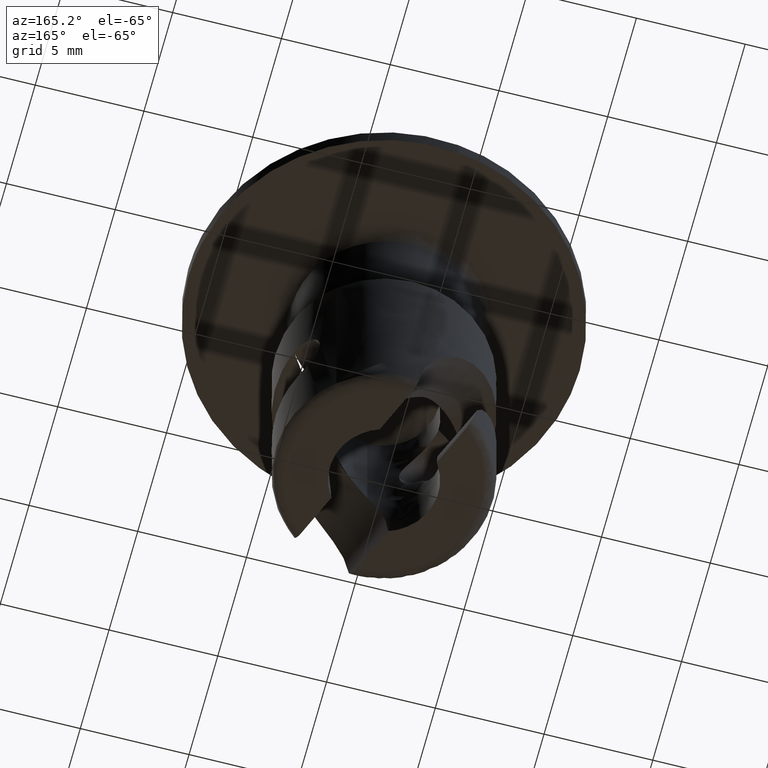
[diagram: clean part render]
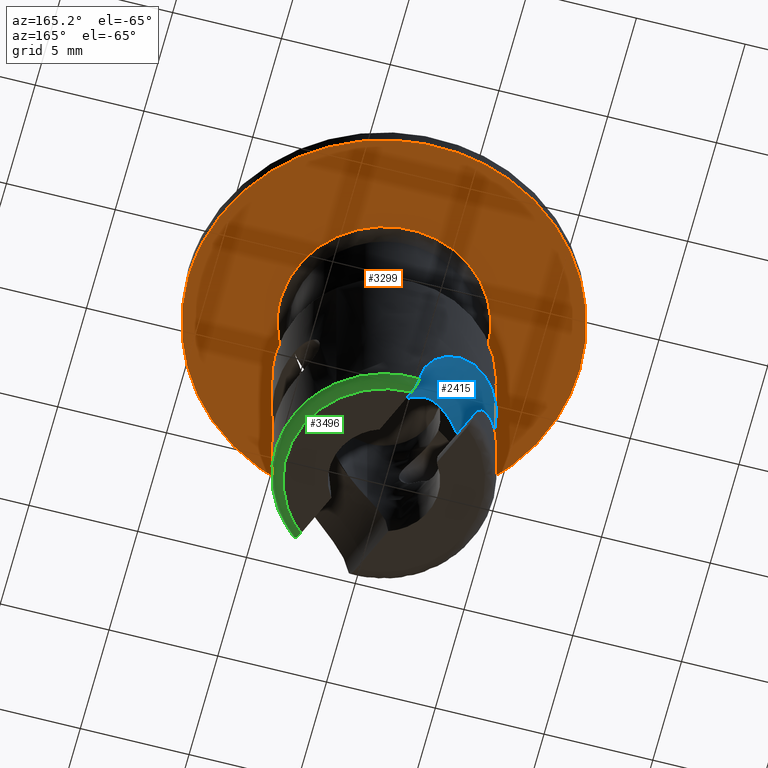
[diagram: same view with three faces highlighted in distinct colors, each labeled with its STEP entity id]
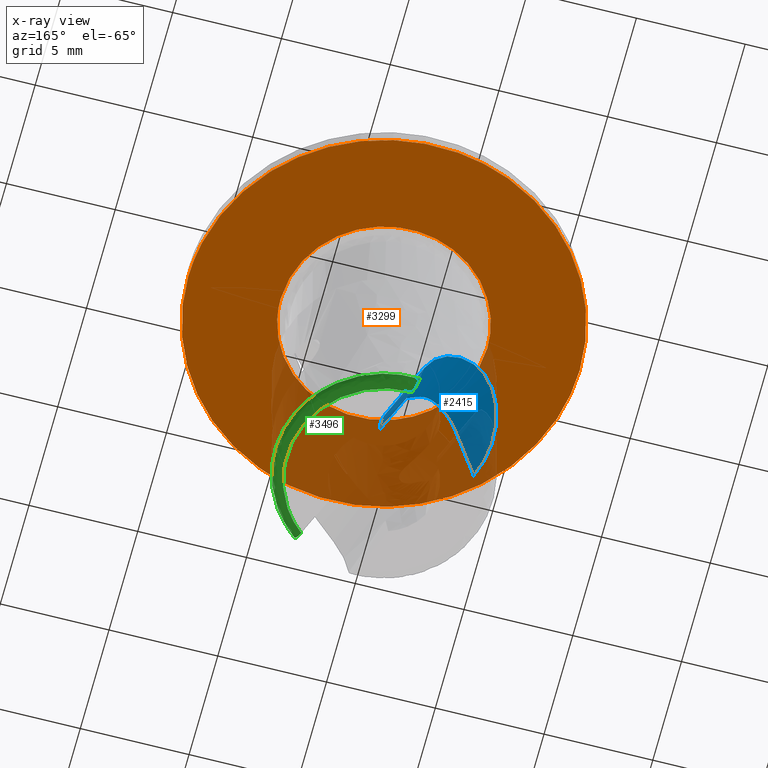
[diagram: x-ray of the same camera — body ghosted, the three highlighted faces saturated]
A machine part, auxiliary view with three faces highlighted in distinct colors.
The next image is the same camera in x-ray (body ghosted, the three faces saturated) — at least one of them is partly hidden behind the body in this view.
Their STEP definitions:

[orange] entity #3299 — the highlighted face is a freeform B-spline surface patch.
#297=CARTESIAN_POINT('',(-1.062301609337486,8.937086510197609,-8.314378E-014));
#298=VERTEX_POINT('',#297);
#299=CARTESIAN_POINT('',(9.0,0.0,0.0));
#300=VERTEX_POINT('',#299);
#301=CARTESIAN_POINT('',(-1.062301609337486,8.937086510197608,-8.314378E-014));
#302=CARTESIAN_POINT('',(-0.533013791208688,9.000000000000002,0.0));
#303=CARTESIAN_POINT('',(0.0,9.0,0.0));
#304=CARTESIAN_POINT('',(9.0,9.0,0.0));
#305=CARTESIAN_POINT('',(9.0,0.0,0.0));
#313=(BOUNDED_CURVE()B_SPLINE_CURVE(2,(#301,#302,#303,#304,#305),.UNSPECIFIED.,.F.,.U.)B_SPLINE_CURVE_WITH_KNOTS((3,2,3),(0.229562596481464,0.250000000000000,0.500000000000000),.UNSPECIFIED.)CURVE()GEOMETRIC_REPRESENTATION_ITEM()RATIONAL_B_SPLINE_CURVE((0.956026995206066,0.976056092397066,1.0,0.707106781186547,1.0))REPRESENTATION_ITEM(''));
#314=EDGE_CURVE('',#298,#300,#313,.T.);
#355=CARTESIAN_POINT('',(0.549431515278102,-8.983213512434766,-1.288674E-013));
#356=VERTEX_POINT('',#355);
#362=CARTESIAN_POINT('',(9.0,0.0,0.0));
#363=CARTESIAN_POINT('',(9.0,-8.466359644820372,0.0));
#364=CARTESIAN_POINT('',(0.549431515278102,-8.983213512434766,-1.288674E-013));
#372=(BOUNDED_CURVE()B_SPLINE_CURVE(2,(#362,#363,#364),.UNSPECIFIED.,.F.,.U.)B_SPLINE_CURVE_WITH_KNOTS((3,3),(0.500000000000000,0.739333064821338),.UNSPECIFIED.)CURVE()GEOMETRIC_REPRESENTATION_ITEM()RATIONAL_B_SPLINE_CURVE((1.0,0.719603873103959,0.976072261520416))REPRESENTATION_ITEM(''));
#373=EDGE_CURVE('',#300,#356,#372,.T.);
#396=CARTESIAN_POINT('',(-9.0,0.0,0.0));
#397=VERTEX_POINT('',#396);
#398=CARTESIAN_POINT('',(-9.0,0.0,0.0));
#399=CARTESIAN_POINT('',(-9.0,7.993576590584168,0.0));
#400=CARTESIAN_POINT('',(-1.062301609337486,8.937086510197608,-8.314378E-014));
#408=(BOUNDED_CURVE()B_SPLINE_CURVE(2,(#398,#399,#400),.UNSPECIFIED.,.F.,.U.)B_SPLINE_CURVE_WITH_KNOTS((3,3),(0.0,0.229562596481464),.UNSPECIFIED.)CURVE()GEOMETRIC_REPRESENTATION_ITEM()RATIONAL_B_SPLINE_CURVE((1.0,0.731050688789481,0.956026995206066))REPRESENTATION_ITEM(''));
#409=EDGE_CURVE('',#397,#298,#408,.T.);
#411=CARTESIAN_POINT('',(0.549431515278102,-8.983213512434766,-1.288674E-013));
#412=CARTESIAN_POINT('',(0.274972191932445,-9.0,0.0));
#413=CARTESIAN_POINT('',(0.0,-9.0,0.0));
#414=CARTESIAN_POINT('',(-9.0,-9.0,0.0));
#415=CARTESIAN_POINT('',(-9.0,0.0,0.0));
#423=(BOUNDED_CURVE()B_SPLINE_CURVE(2,(#411,#412,#413,#414,#415),.UNSPECIFIED.,.F.,.U.)B_SPLINE_CURVE_WITH_KNOTS((3,2,3),(0.739333064821338,0.750000000000000,1.0),.UNSPECIFIED.)CURVE()GEOMETRIC_REPRESENTATION_ITEM()RATIONAL_B_SPLINE_CURVE((0.976072261520416,0.987502908082589,1.0,0.707106781186547,1.0))REPRESENTATION_ITEM(''));
#424=EDGE_CURVE('',#356,#397,#423,.T.);
#1716=CARTESIAN_POINT('',(-4.749999999909127,1.109309E-016,1.369639E-014));
#1717=VERTEX_POINT('',#1716);
#1731=CARTESIAN_POINT('',(4.750000000000000,0.0,0.0));
#1732=VERTEX_POINT('',#1731);
#1733=CARTESIAN_POINT('',(4.750000000000000,0.0,0.0));
#1734=CARTESIAN_POINT('',(4.750000000000000,4.750000000000000,0.0));
#1735=CARTESIAN_POINT('',(0.0,4.750000000000000,0.0));
#1736=CARTESIAN_POINT('',(-4.750000000000000,4.750000000000000,0.0));
#1737=CARTESIAN_POINT('',(-4.749999999909127,1.109309E-016,1.369639E-014));
#1745=(BOUNDED_CURVE()B_SPLINE_CURVE(2,(#1733,#1734,#1735,#1736,#1737),.UNSPECIFIED.,.F.,.U.)B_SPLINE_CURVE_WITH_KNOTS((3,2,3),(0.0,0.250000000000000,0.500000000000000),.UNSPECIFIED.)CURVE()GEOMETRIC_REPRESENTATION_ITEM()RATIONAL_B_SPLINE_CURVE((1.0,0.707106781186548,1.0,0.707106781186548,1.0))REPRESENTATION_ITEM(''));
#1746=EDGE_CURVE('',#1732,#1717,#1745,.T.);
#1748=CARTESIAN_POINT('',(-1.678184341522321,-4.443669352253488,2.737838E-014));
#1749=VERTEX_POINT('',#1748);
#1750=CARTESIAN_POINT('',(-1.678184341522320,-4.443669352253488,2.737838E-014));
#1751=CARTESIAN_POINT('',(-0.867050501521726,-4.749999999999999,0.0));
#1752=CARTESIAN_POINT('',(0.0,-4.750000000000000,0.0));
#1753=CARTESIAN_POINT('',(4.750000000000000,-4.750000000000000,0.0));
#1754=CARTESIAN_POINT('',(4.750000000000000,0.0,0.0));
#1762=(BOUNDED_CURVE()B_SPLINE_CURVE(2,(#1750,#1751,#1752,#1753,#1754),.UNSPECIFIED.,.F.,.U.)B_SPLINE_CURVE_WITH_KNOTS((3,2,3),(0.689999999998230,0.750000000000000,1.0),.UNSPECIFIED.)CURVE()GEOMETRIC_REPRESENTATION_ITEM()RATIONAL_B_SPLINE_CURVE((0.893152553774696,0.929705627482698,1.0,0.707106781186548,1.0))REPRESENTATION_ITEM(''));
#1763=EDGE_CURVE('',#1749,#1732,#1762,.T.);
#1801=CARTESIAN_POINT('',(-4.749999999909127,1.109309E-016,1.369639E-014));
#1802=CARTESIAN_POINT('',(-4.750000000000000,-3.283575626171604,0.0));
#1803=CARTESIAN_POINT('',(-1.678184341522321,-4.443669352253488,2.737838E-014));
#1811=(BOUNDED_CURVE()B_SPLINE_CURVE(2,(#1801,#1802,#1803),.UNSPECIFIED.,.F.,.U.)B_SPLINE_CURVE_WITH_KNOTS((3,3),(0.500000000000000,0.689999999998229),.UNSPECIFIED.)CURVE()GEOMETRIC_REPRESENTATION_ITEM()RATIONAL_B_SPLINE_CURVE((1.0,0.777401153703851,0.893152553774695))REPRESENTATION_ITEM(''));
#1812=EDGE_CURVE('',#1717,#1749,#1811,.T.);
#3283=CARTESIAN_POINT('',(-9.899099965112507,-9.898881420025527,0.0));
#3284=CARTESIAN_POINT('',(9.899100447910129,-9.898881420025527,0.0));
#3285=CARTESIAN_POINT('',(-9.899099965112507,9.898936298021974,0.0));
#3286=CARTESIAN_POINT('',(9.899100447910129,9.898936298021974,0.0));
#3287=B_SPLINE_SURFACE_WITH_KNOTS('',1,1,((#3283,#3285),(#3284,#3286)),.UNSPECIFIED.,.F.,.F.,.U.,(2,2),(2,2),(0.0,19.798200413022631),(0.0,19.797817718047501),.UNSPECIFIED.);
#3288=ORIENTED_EDGE('',*,*,#409,.T.);
#3289=ORIENTED_EDGE('',*,*,#314,.T.);
#3290=ORIENTED_EDGE('',*,*,#373,.T.);
#3291=ORIENTED_EDGE('',*,*,#424,.T.);
#3292=EDGE_LOOP('',(#3288,#3289,#3290,#3291));
#3293=FACE_OUTER_BOUND('',#3292,.T.);
#3294=ORIENTED_EDGE('',*,*,#1746,.T.);
#3295=ORIENTED_EDGE('',*,*,#1812,.T.);
#3296=ORIENTED_EDGE('',*,*,#1763,.T.);
#3297=EDGE_LOOP('',(#3294,#3295,#3296));
#3298=FACE_BOUND('',#3297,.T.);
#3299=ADVANCED_FACE('',(#3293,#3298),#3287,.F.);

[blue] entity #2415 — the highlighted face is a freeform B-spline surface patch.
#483=CARTESIAN_POINT('',(-0.396705262394776,2.468326342399136,-12.757818604130780));
#484=VERTEX_POINT('',#483);
#485=CARTESIAN_POINT('',(0.821620629966657,2.361130987559410,-16.499991999999999));
#486=VERTEX_POINT('',#485);
#487=CARTESIAN_POINT('',(-0.396705262394776,2.468326342399136,-12.757818604130780));
#488=CARTESIAN_POINT('',(-0.374689728730974,2.471862556015252,-12.792135446358330));
#489=CARTESIAN_POINT('',(-0.352860775296325,2.475066859503198,-12.826635483326990));
#490=CARTESIAN_POINT('',(-0.274510751990244,2.485539854627109,-12.952236586625000));
#491=CARTESIAN_POINT('',(-0.219122534949363,2.490963330062478,-13.044421271482831));
#492=CARTESIAN_POINT('',(-0.111245094675823,2.498106902240503,-13.231391844104509));
#493=CARTESIAN_POINT('',(-0.058756051457369,2.499816637977361,-13.326203044072869));
#494=CARTESIAN_POINT('',(0.092550910448116,2.500320389651988,-13.611869867123040));
#495=CARTESIAN_POINT('',(0.185777978703736,2.494552241246191,-13.804874506509320));
#496=CARTESIAN_POINT('',(0.355782634026911,2.476029930817845,-14.196684103217329));
#497=CARTESIAN_POINT('',(0.432564614343583,2.463259284223879,-14.395486642063640));
#498=CARTESIAN_POINT('',(0.567810437403353,2.435641776414343,-14.799821152887610));
#499=CARTESIAN_POINT('',(0.626276591543895,2.420796277435143,-15.005352327865010));
#500=CARTESIAN_POINT('',(0.698214385251623,2.400648686511466,-15.319624382292600));
#501=CARTESIAN_POINT('',(0.719589156788436,2.394277061143072,-15.425553476065719));
#502=CARTESIAN_POINT('',(0.756523998607447,2.382864482991020,-15.638808192220370));
#503=CARTESIAN_POINT('',(0.772021192912378,2.377846312257434,-15.745723948289189));
#504=CARTESIAN_POINT('',(0.809320382263347,2.365520120731845,-16.067381413073541));
#505=CARTESIAN_POINT('',(0.821911469345406,2.361029684390005,-16.283037621032069));
#506=CARTESIAN_POINT('',(0.821620629966657,2.361130987559410,-16.499991999999999));
#507=B_SPLINE_CURVE_WITH_KNOTS('',3,(#487,#488,#489,#490,#491,#492,#493,#494,#495,#496,#497,#498,#499,#500,#501,#502,#503,#504,#505,#506),.UNSPECIFIED.,.F.,.U.,(4,2,2,2,2,2,2,2,2,4),(0.226156631963518,0.249999999999999,0.312499999999999,0.374999999999998,0.499999999999998,0.624999999999998,0.749999999999998,0.812499999999997,0.874999999999998,1.0),.UNSPECIFIED.);
#508=EDGE_CURVE('',#484,#486,#507,.T.);
#745=CARTESIAN_POINT('',(-1.068076637585400,2.260356674563610,-11.830051027094740));
#746=VERTEX_POINT('',#745);
#747=CARTESIAN_POINT('',(-1.068076637585400,2.260356674563610,-11.830051027094740));
#748=CARTESIAN_POINT('',(-0.937149889792955,2.322222535056724,-11.992076449015840));
#749=CARTESIAN_POINT('',(-0.809622041924993,2.368734506686296,-12.159008977675610));
#750=CARTESIAN_POINT('',(-0.586867594563241,2.432347862127605,-12.469934268652260));
#751=CARTESIAN_POINT('',(-0.490107279872867,2.453324163062127,-12.612227755805980));
#752=CARTESIAN_POINT('',(-0.396705262394776,2.468326342399136,-12.757818604130780));
#753=B_SPLINE_CURVE_WITH_KNOTS('',3,(#747,#748,#749,#750,#751,#752),.UNSPECIFIED.,.F.,.U.,(4,2,4),(0.0,0.125000000000000,0.226156631963518),.UNSPECIFIED.);
#754=EDGE_CURVE('',#746,#484,#753,.T.);
#1047=CARTESIAN_POINT('',(-0.313195905412202,4.990181191583430,-15.999992000000001));
#1048=VERTEX_POINT('',#1047);
#1062=CARTESIAN_POINT('',(-4.602524578819660,-1.953654908462775,-9.500000000000000));
#1063=VERTEX_POINT('',#1062);
#1064=CARTESIAN_POINT('',(-0.313195905412202,4.990181191583430,-15.999992000000001));
#1065=CARTESIAN_POINT('',(-0.333546765425535,4.988903922125051,-15.727396232284431));
#1066=CARTESIAN_POINT('',(-0.370452584818856,4.986532960222630,-15.459241468027781));
#1067=CARTESIAN_POINT('',(-0.474883570205751,4.977673319507243,-14.931217910276290));
#1068=CARTESIAN_POINT('',(-0.542411066037259,4.971178988433310,-14.671349930966340));
#1069=CARTESIAN_POINT('',(-0.706408354634536,4.950537095720326,-14.159575522817160));
#1070=CARTESIAN_POINT('',(-0.802876324190982,4.936397573944337,-13.907668332396129));
#1071=CARTESIAN_POINT('',(-0.940999279459356,4.910734142524551,-13.597724074708120));
#1072=CARTESIAN_POINT('',(-0.969553742324187,4.905186823861801,-13.535879231302539));
#1073=CARTESIAN_POINT('',(-1.028090254946042,4.893252769265782,-13.413356119784391));
#1074=CARTESIAN_POINT('',(-1.118053938493007,4.874091495996610,-13.231257073642141));
#1075=CARTESIAN_POINT('',(-1.214254316441925,4.850809270207141,-13.054133564454609));
#1076=CARTESIAN_POINT('',(-1.414411305832226,4.797759596065175,-12.706374693822969));
#1077=CARTESIAN_POINT('',(-1.558172904669955,4.753794878156501,-12.483163799037110));
#1078=CARTESIAN_POINT('',(-1.863910727941976,4.642446051673341,-12.053786999905910));
#1079=CARTESIAN_POINT('',(-2.025898679385793,4.575105322148563,-11.847619161810870));
#1080=CARTESIAN_POINT('',(-2.281066071465191,4.450359661823153,-11.551551674399359));
#1081=CARTESIAN_POINT('',(-2.367379583129335,4.405162778008863,-11.455979557419241));
#1082=CARTESIAN_POINT('',(-2.541149898323535,4.307261587786686,-11.271862428583290));
#1083=CARTESIAN_POINT('',(-2.628735599058786,4.254496003795603,-11.183168502018880));
#1084=CARTESIAN_POINT('',(-2.892725821805875,4.083636333483227,-10.927054117878800));
#1085=CARTESIAN_POINT('',(-3.070398690331163,3.953062455629196,-10.769580052182951));
#1086=CARTESIAN_POINT('',(-3.291383398934526,3.764329090581676,-10.589240772930030));
#1087=CARTESIAN_POINT('',(-3.335526468967402,3.725286228791988,-10.554001642793491));
#1088=CARTESIAN_POINT('',(-3.422666554459483,3.645387217922649,-10.485892239748219));
#1089=CARTESIAN_POINT('',(-3.552011977668127,3.522522078198718,-10.386988242181349));
#1090=CARTESIAN_POINT('',(-3.676899926640314,3.390495834068192,-10.297526967280669));
#1091=CARTESIAN_POINT('',(-3.919717473170421,3.113845727708381,-10.130377207413609));
#1092=CARTESIAN_POINT('',(-4.072371127740670,2.912667398485371,-10.034628307955879));
#1093=CARTESIAN_POINT('',(-4.247738525421426,2.638362615935605,-9.932128063504123));
#1094=CARTESIAN_POINT('',(-4.282126033587898,2.582194651128494,-9.912438321733704));
#1095=CARTESIAN_POINT('',(-4.348616761330273,2.468575469157305,-9.875063344855962));
#1096=CARTESIAN_POINT('',(-4.380753847554343,2.411086895704135,-9.857355702648940));
#1097=CARTESIAN_POINT('',(-4.473804560942052,2.236615728391362,-9.806957805303112));
#1098=CARTESIAN_POINT('',(-4.531361084768399,2.117630048049669,-9.776988375661446));
#1099=CARTESIAN_POINT('',(-4.637253118513405,1.874426263098655,-9.723280495578823));
#1100=CARTESIAN_POINT('',(-4.685589482853716,1.750208259561912,-9.699543236958979));
#1101=CARTESIAN_POINT('',(-4.772655934160066,1.496573782943829,-9.657395666182408));
#1102=CARTESIAN_POINT('',(-4.811415673390117,1.367045619879309,-9.638972576584321));
#1103=CARTESIAN_POINT('',(-4.912306595230540,0.971278513278041,-9.590556081878109));
#1104=CARTESIAN_POINT('',(-4.957498069659618,0.704509144948995,-9.568086883068808));
#1105=CARTESIAN_POINT('',(-4.992796598157821,0.300436667074131,-9.543235585684673));
#1106=CARTESIAN_POINT('',(-4.999123886082068,0.165088601563694,-9.536452009681046));
#1107=CARTESIAN_POINT('',(-5.000311045573650,-0.038896223528829,-9.527979404065173));
#1108=CARTESIAN_POINT('',(-4.999321224268683,-0.107051855906737,-9.525440086090436));
#1109=CARTESIAN_POINT('',(-4.994526116694834,-0.243683550798210,-9.520852306145960));
#1110=CARTESIAN_POINT('',(-4.990711513832196,-0.312172775928860,-9.518804757432035));
#1111=CARTESIAN_POINT('',(-4.964776931553784,-0.652259243832833,-9.509688334725635));
#1112=CARTESIAN_POINT('',(-4.922157670676698,-0.919354550364728,-9.505776196690922));
#1113=CARTESIAN_POINT('',(-4.794587989318406,-1.443874972759587,-9.500926860059549));
#1114=CARTESIAN_POINT('',(-4.709642284534187,-1.701301296142523,-9.499999999999982));
#1115=CARTESIAN_POINT('',(-4.602524578819680,-1.953654908462780,-9.500000000000000));
#1116=B_SPLINE_CURVE_WITH_KNOTS('',3,(#1064,#1065,#1066,#1067,#1068,#1069,#1070,#1071,#1072,#1073,#1074,#1075,#1076,#1077,#1078,#1079,#1080,#1081,#1082,#1083,#1084,#1085,#1086,#1087,#1088,#1089,#1090,#1091,#1092,#1093,#1094,#1095,#1096,#1097,#1098,#1099,#1100,#1101,#1102,#1103,#1104,#1105,#1106,#1107,#1108,#1109,#1110,#1111,#1112,#1113,#1114,#1115),.UNSPECIFIED.,.F.,.U.,(4,2,2,2,2,1,2,2,2,2,2,2,2,1,2,2,2,2,2,2,2,2,2,2,2,2,4),(0.0,0.062500000000000,0.125000000000000,0.187499999999999,0.203124999999999,0.218749999999999,0.249999999999999,0.312499999999999,0.374999999999999,0.406249999999999,0.437499999999999,0.499999999999999,0.515624999999999,0.531249999999999,0.562499999999998,0.624999999999998,0.640624999999998,0.656249999999998,0.687499999999998,0.718749999999998,0.749999999999998,0.812499999999999,0.843749999999999,0.859374999999999,0.874999999999999,0.937500000000000,1.0),.UNSPECIFIED.);
#1117=EDGE_CURVE('',#1048,#1063,#1116,.T.);
#1995=CARTESIAN_POINT('',(-1.068076637585400,2.260356674563610,-11.830051027094740));
#1996=CARTESIAN_POINT('',(-1.115196898123030,2.243959020799069,-11.775354650815141));
#1997=CARTESIAN_POINT('',(-1.211607937571305,2.210408381946171,-11.663442398399670));
#1998=CARTESIAN_POINT('',(-1.358044262630284,2.136874158805101,-11.497915340138841));
#1999=CARTESIAN_POINT('',(-1.510223223717602,2.045196417221640,-11.330777932128539));
#2000=CARTESIAN_POINT('',(-1.668513222311159,1.933383166725397,-11.163367103534560));
#2001=CARTESIAN_POINT('',(-1.833388564019825,1.801766182632153,-10.996605001827920));
#2002=CARTESIAN_POINT('',(-2.005294546602790,1.650066696230525,-10.831615007748960));
#2003=CARTESIAN_POINT('',(-2.280103868866821,1.386131698470109,-10.583115061358050));
#2004=CARTESIAN_POINT('',(-2.648559343769375,0.990191801033740,-10.290238160197550));
#2005=CARTESIAN_POINT('',(-3.046132583966342,0.488190559634916,-10.030102903001280));
#2006=CARTESIAN_POINT('',(-3.431541625116947,-0.106862995292912,-9.812288419038961));
#2007=CARTESIAN_POINT('',(-3.756832317011396,-0.609583753181215,-9.676222751544589));
#2008=CARTESIAN_POINT('',(-4.056671894118712,-1.064740366865341,-9.589291363422561));
#2009=CARTESIAN_POINT('',(-4.216908536215279,-1.297732362889791,-9.554100119924556));
#2010=CARTESIAN_POINT('',(-4.335363766573912,-1.466941027549956,-9.533473465121672));
#2011=CARTESIAN_POINT('',(-4.415481485342678,-1.580117718018017,-9.521640466615461));
#2012=CARTESIAN_POINT('',(-4.487639912387965,-1.685338930415181,-9.512666428997489));
#2013=CARTESIAN_POINT('',(-4.545029055053859,-1.777706913664721,-9.506554950711630));
#2014=CARTESIAN_POINT('',(-4.582017502343803,-1.851747667278659,-9.502888301022550));
#2015=CARTESIAN_POINT('',(-4.606164697329787,-1.908464191864825,-9.500664087911277));
#2016=CARTESIAN_POINT('',(-4.603546974480717,-1.940962246825166,-9.500186521564382));
#2017=CARTESIAN_POINT('',(-4.602524578819660,-1.953654908462775,-9.500000000000000));
#2018=B_SPLINE_CURVE_WITH_KNOTS('',3,(#1995,#1996,#1997,#1998,#1999,#2000,#2001,#2002,#2003,#2004,#2005,#2006,#2007,#2008,#2009,#2010,#2011,#2012,#2013,#2014,#2015,#2016,#2017),.UNSPECIFIED.,.F.,.U.,(4,1,1,1,1,1,1,1,1,1,1,1,1,1,1,1,1,1,1,1,4),(0.0,0.035661690032899,0.072966077974213,0.112076344922829,0.153134142441811,0.196261933425678,0.241565394112429,0.289135700252919,0.415323915226517,0.536920191129094,0.620898977058480,0.772239528690764,0.832208927584857,0.886700270743866,0.909457090794413,0.932201028318931,0.953717471453569,0.971115563559161,0.984466466096118,0.993933117224434,1.0),.UNSPECIFIED.);
#2019=EDGE_CURVE('',#746,#1063,#2018,.T.);
#2365=CARTESIAN_POINT('',(-6.848274135887317,2.660344091129034,-9.492860294288445));
#2366=CARTESIAN_POINT('',(-4.795838525301175,-2.174893341668361,-9.492860294288445));
#2367=CARTESIAN_POINT('',(-0.058428642025677,5.542461231324364,-9.552643478378027));
#2368=CARTESIAN_POINT('',(1.994006968560463,0.707223798526976,-9.552643478378029));
#2369=CARTESIAN_POINT('',(-0.468736995841141,5.368295745472592,-16.915624430937129));
#2370=CARTESIAN_POINT('',(1.583698614744997,0.533058312675202,-16.915624430937129));
#2378=(BOUNDED_SURFACE()B_SPLINE_SURFACE(1,2,((#2365,#2367,#2369),(#2366,#2368,#2370)),.UNSPECIFIED.,.F.,.F.,.U.)B_SPLINE_SURFACE_WITH_KNOTS((2,2),(3,3),(0.0,5.252810006760881),(0.0,12.029749367071400),.UNSPECIFIED.)GEOMETRIC_REPRESENTATION_ITEM()RATIONAL_B_SPLINE_SURFACE(((1.0,0.688354575693754,1.0),(1.0,0.688354575693754,1.0)))REPRESENTATION_ITEM('')SURFACE());
#2379=ORIENTED_EDGE('',*,*,#508,.F.);
#2380=ORIENTED_EDGE('',*,*,#754,.F.);
#2381=ORIENTED_EDGE('',*,*,#2019,.T.);
#2382=ORIENTED_EDGE('',*,*,#1117,.F.);
#2383=CARTESIAN_POINT('',(-0.085926736938831,4.499179546970655,-16.499991999999999));
#2384=VERTEX_POINT('',#2383);
#2385=CARTESIAN_POINT('',(-0.085926736938831,4.499179546970655,-16.499991999999999));
#2386=CARTESIAN_POINT('',(-0.099323386829684,4.530740090304483,-16.499992000014480));
#2387=CARTESIAN_POINT('',(-0.112514948671491,4.561830365591241,-16.496982507674950));
#2388=CARTESIAN_POINT('',(-0.138512566770733,4.623070058957914,-16.485107271363908));
#2389=CARTESIAN_POINT('',(-0.151372913173369,4.653347832798069,-16.476191638592368));
#2390=CARTESIAN_POINT('',(-0.176517242522216,4.712335603826618,-16.452256780752041));
#2391=CARTESIAN_POINT('',(-0.188511817925164,4.740365641031774,-16.437540437744271));
#2392=CARTESIAN_POINT('',(-0.205717921178867,4.780207127594323,-16.411385875600750));
#2393=CARTESIAN_POINT('',(-0.211321637625097,4.793117980129815,-16.401983380206762));
#2394=CARTESIAN_POINT('',(-0.222271157668031,4.818168450778479,-16.381762240879539));
#2395=CARTESIAN_POINT('',(-0.227646493351381,4.830374038537219,-16.370873922467311));
#2396=CARTESIAN_POINT('',(-0.243104211517101,4.865120905863292,-16.336599099187762));
#2397=CARTESIAN_POINT('',(-0.252551265329906,4.885876374978811,-16.311622758348481));
#2398=CARTESIAN_POINT('',(-0.269855555540411,4.922516928318113,-16.257422027989101));
#2399=CARTESIAN_POINT('',(-0.277788428082754,4.938535296295917,-16.227807117909720));
#2400=CARTESIAN_POINT('',(-0.291479740881818,4.964145045134797,-16.166365880077009));
#2401=CARTESIAN_POINT('',(-0.297290747804780,4.973871177412902,-16.134504893100029));
#2402=CARTESIAN_POINT('',(-0.306881423756245,4.987005521835656,-16.068459685655530));
#2403=CARTESIAN_POINT('',(-0.310638657178369,4.990341690701624,-16.034245837189271));
#2404=CARTESIAN_POINT('',(-0.313195905412202,4.990181191583430,-15.999992000000001));
#2405=B_SPLINE_CURVE_WITH_KNOTS('',3,(#2385,#2386,#2387,#2388,#2389,#2390,#2391,#2392,#2393,#2394,#2395,#2396,#2397,#2398,#2399,#2400,#2401,#2402,#2403,#2404),.UNSPECIFIED.,.F.,.U.,(4,2,2,2,2,2,2,2,2,4),(0.0,0.124999999999999,0.249999999999998,0.374999999999997,0.437499999999996,0.499999999999996,0.624999999999997,0.749999999999998,0.874999999999999,1.0),.UNSPECIFIED.);
#2406=EDGE_CURVE('',#2384,#1048,#2405,.T.);
#2407=ORIENTED_EDGE('',*,*,#2406,.F.);
#2408=CARTESIAN_POINT('',(-0.085926736938831,4.499179546970655,-16.499991999999999));
#2409=CARTESIAN_POINT('',(0.821620629966657,2.361130987559410,-16.499991999999999));
#2410=QUASI_UNIFORM_CURVE('',1,(#2408,#2409),.UNSPECIFIED.,.F.,.U.);
#2411=EDGE_CURVE('',#2384,#486,#2410,.T.);
#2412=ORIENTED_EDGE('',*,*,#2411,.T.);
#2413=EDGE_LOOP('',(#2379,#2380,#2381,#2382,#2407,#2412));
#2414=FACE_OUTER_BOUND('',#2413,.T.);
#2415=ADVANCED_FACE('',(#2414),#2378,.F.);

[green] entity #3496 — the highlighted face is a freeform B-spline surface patch.
#983=CARTESIAN_POINT('',(3.124495312218480,-3.903527769073095,-15.999992000000001));
#984=VERTEX_POINT('',#983);
#1000=CARTESIAN_POINT('',(3.441769540624432,-3.626875022551604,-15.999992000000001));
#1001=VERTEX_POINT('',#1000);
#1002=CARTESIAN_POINT('',(3.124495312218476,-3.903527769073094,-15.999992000000001));
#1003=CARTESIAN_POINT('',(3.288960453761339,-3.771885164184941,-15.999991999999999));
#1004=CARTESIAN_POINT('',(3.441769540624432,-3.626875022551605,-15.999992000000001));
#1012=(BOUNDED_CURVE()B_SPLINE_CURVE(2,(#1002,#1003,#1004),.UNSPECIFIED.,.F.,.U.)B_SPLINE_CURVE_WITH_KNOTS((3,3),(0.0,0.035159483034312),.UNSPECIFIED.)CURVE()GEOMETRIC_REPRESENTATION_ITEM()RATIONAL_B_SPLINE_CURVE((1.0,0.986404524283290,0.974721088157800))REPRESENTATION_ITEM(''));
#1013=EDGE_CURVE('',#984,#1001,#1012,.T.);
#1045=CARTESIAN_POINT('',(3.205212513216011,3.837526904807765,-15.999992000000001));
#1046=VERTEX_POINT('',#1045);
#1047=CARTESIAN_POINT('',(-0.313195905412202,4.990181191583430,-15.999992000000001));
#1048=VERTEX_POINT('',#1047);
#1049=CARTESIAN_POINT('',(3.205212513216011,3.837526904807766,-15.999992000000002));
#1050=CARTESIAN_POINT('',(1.675711776548833,5.115009873813185,-15.999992000000001));
#1051=CARTESIAN_POINT('',(-0.313195905412200,4.990181191583432,-15.999992000000001));
#1059=(BOUNDED_CURVE()B_SPLINE_CURVE(2,(#1049,#1050,#1051),.UNSPECIFIED.,.F.,.U.)B_SPLINE_CURVE_WITH_KNOTS((3,3),(0.701706688052133,1.0),.UNSPECIFIED.)CURVE()GEOMETRIC_REPRESENTATION_ITEM()RATIONAL_B_SPLINE_CURVE((0.906937281743806,0.884655884300499,1.0))REPRESENTATION_ITEM(''));
#1060=EDGE_CURVE('',#1046,#1048,#1059,.T.);
#1350=CARTESIAN_POINT('',(3.441769540624433,-3.626875022551604,-15.999992000000002));
#1351=CARTESIAN_POINT('',(5.871268088622720,-1.321371234996644,-15.999991999999999));
#1352=CARTESIAN_POINT('',(4.663728750462753,1.802674164153669,-15.999992000000001));
#1353=CARTESIAN_POINT('',(4.197569954227769,3.008681452388637,-15.999991999999999));
#1354=CARTESIAN_POINT('',(3.205212513216011,3.837526904807766,-15.999992000000002));
#1362=(BOUNDED_CURVE()B_SPLINE_CURVE(2,(#1350,#1351,#1352,#1353,#1354),.UNSPECIFIED.,.F.,.U.)B_SPLINE_CURVE_WITH_KNOTS((3,2,3),(0.035159483034312,0.500000000000000,0.701706688052133),.UNSPECIFIED.)CURVE()GEOMETRIC_REPRESENTATION_ITEM()RATIONAL_B_SPLINE_CURVE((0.974721088157800,0.820255378772700,1.0,0.922004018755491,0.906937281743806))REPRESENTATION_ITEM(''));
#1363=EDGE_CURVE('',#1001,#1046,#1362,.T.);
#2383=CARTESIAN_POINT('',(-0.085926736938831,4.499179546970655,-16.499991999999999));
#2384=VERTEX_POINT('',#2383);
#2385=CARTESIAN_POINT('',(-0.085926736938831,4.499179546970655,-16.499991999999999));
#2386=CARTESIAN_POINT('',(-0.099323386829684,4.530740090304483,-16.499992000014480));
#2387=CARTESIAN_POINT('',(-0.112514948671491,4.561830365591241,-16.496982507674950));
#2388=CARTESIAN_POINT('',(-0.138512566770733,4.623070058957914,-16.485107271363908));
#2389=CARTESIAN_POINT('',(-0.151372913173369,4.653347832798069,-16.476191638592368));
#2390=CARTESIAN_POINT('',(-0.176517242522216,4.712335603826618,-16.452256780752041));
#2391=CARTESIAN_POINT('',(-0.188511817925164,4.740365641031774,-16.437540437744271));
#2392=CARTESIAN_POINT('',(-0.205717921178867,4.780207127594323,-16.411385875600750));
#2393=CARTESIAN_POINT('',(-0.211321637625097,4.793117980129815,-16.401983380206762));
#2394=CARTESIAN_POINT('',(-0.222271157668031,4.818168450778479,-16.381762240879539));
#2395=CARTESIAN_POINT('',(-0.227646493351381,4.830374038537219,-16.370873922467311));
#2396=CARTESIAN_POINT('',(-0.243104211517101,4.865120905863292,-16.336599099187762));
#2397=CARTESIAN_POINT('',(-0.252551265329906,4.885876374978811,-16.311622758348481));
#2398=CARTESIAN_POINT('',(-0.269855555540411,4.922516928318113,-16.257422027989101));
#2399=CARTESIAN_POINT('',(-0.277788428082754,4.938535296295917,-16.227807117909720));
#2400=CARTESIAN_POINT('',(-0.291479740881818,4.964145045134797,-16.166365880077009));
#2401=CARTESIAN_POINT('',(-0.297290747804780,4.973871177412902,-16.134504893100029));
#2402=CARTESIAN_POINT('',(-0.306881423756245,4.987005521835656,-16.068459685655530));
#2403=CARTESIAN_POINT('',(-0.310638657178369,4.990341690701624,-16.034245837189271));
#2404=CARTESIAN_POINT('',(-0.313195905412202,4.990181191583430,-15.999992000000001));
#2405=B_SPLINE_CURVE_WITH_KNOTS('',3,(#2385,#2386,#2387,#2388,#2389,#2390,#2391,#2392,#2393,#2394,#2395,#2396,#2397,#2398,#2399,#2400,#2401,#2402,#2403,#2404),.UNSPECIFIED.,.F.,.U.,(4,2,2,2,2,2,2,2,2,4),(0.0,0.124999999999999,0.249999999999998,0.374999999999997,0.437499999999996,0.499999999999996,0.624999999999997,0.749999999999998,0.874999999999999,1.0),.UNSPECIFIED.);
#2406=EDGE_CURVE('',#2384,#1048,#2405,.T.);
#3111=CARTESIAN_POINT('',(2.896918640165445,-3.443524704755395,-16.499991999999999));
#3112=VERTEX_POINT('',#3111);
#3118=CARTESIAN_POINT('',(2.896918640165445,-3.443524704755395,-16.499991999999999));
#3119=CARTESIAN_POINT('',(2.909889189432822,-3.474081417485035,-16.499992000000809));
#3120=CARTESIAN_POINT('',(2.923021819837628,-3.505054235038330,-16.496922881049411));
#3121=CARTESIAN_POINT('',(2.948669416768152,-3.565505323732223,-16.484703099099029));
#3122=CARTESIAN_POINT('',(2.961139438958383,-3.594877012203890,-16.475652397903360));
#3123=CARTESIAN_POINT('',(2.985478999398873,-3.651857279100224,-16.451640814191592));
#3124=CARTESIAN_POINT('',(2.997464732142972,-3.679730140566452,-16.436457934648139));
#3125=CARTESIAN_POINT('',(3.020039974598830,-3.731364012551216,-16.401018757520681));
#3126=CARTESIAN_POINT('',(3.030708981726140,-3.755318579432674,-16.380756257859030));
#3127=CARTESIAN_POINT('',(3.050972737207834,-3.799267595590206,-16.334952383326211));
#3128=CARTESIAN_POINT('',(3.060580441599801,-3.819256380815891,-16.309249986614770));
#3129=CARTESIAN_POINT('',(3.077945257254089,-3.853009577604859,-16.254785231273740));
#3130=CARTESIAN_POINT('',(3.085834371612834,-3.867073106805314,-16.225763609522701));
#3131=CARTESIAN_POINT('',(3.100123528991502,-3.889144019222624,-16.163933270004620));
#3132=CARTESIAN_POINT('',(3.106329958785511,-3.896824353267461,-16.131905578043011));
#3133=CARTESIAN_POINT('',(3.116820683262032,-3.905330474000198,-16.066872531932770));
#3134=CARTESIAN_POINT('',(3.121169159247873,-3.906190117077115,-16.033426551885309));
#3135=CARTESIAN_POINT('',(3.124495312218480,-3.903527769073095,-15.999992000000001));
#3136=B_SPLINE_CURVE_WITH_KNOTS('',3,(#3118,#3119,#3120,#3121,#3122,#3123,#3124,#3125,#3126,#3127,#3128,#3129,#3130,#3131,#3132,#3133,#3134,#3135),.UNSPECIFIED.,.F.,.U.,(4,2,2,2,2,2,2,2,4),(0.0,0.125000000000000,0.250000000000000,0.375000000000000,0.500000000000000,0.625000000000000,0.750000000000000,0.875000000000000,1.0),.UNSPECIFIED.);
#3137=EDGE_CURVE('',#3112,#984,#3136,.T.);
#3451=CARTESIAN_POINT('',(2.346016896382955,-3.799275589800188,-16.498781670444760));
#3452=CARTESIAN_POINT('',(5.488216792564057,-1.858996746105853,-16.498781670444764));
#3453=CARTESIAN_POINT('',(4.171994809358681,1.591461465461891,-16.498781670444760));
#3454=CARTESIAN_POINT('',(2.846845130222017,5.065323511739550,-16.498781670444757));
#3455=CARTESIAN_POINT('',(-0.809565151658521,4.391229275565784,-16.498781670444771));
#3456=CARTESIAN_POINT('',(2.647351184916098,-4.287273783060813,-16.538760747461843));
#3457=CARTESIAN_POINT('',(6.193151145361226,-2.097775700655119,-16.538760747461847));
#3458=CARTESIAN_POINT('',(4.707866946332773,1.795876833979590,-16.538760747461847));
#3459=CARTESIAN_POINT('',(3.212508332904876,5.715939310352738,-16.538760747461840));
#3460=CARTESIAN_POINT('',(-0.913549798730911,4.955260997408304,-16.538760747461847));
#3461=CARTESIAN_POINT('',(2.626346634161985,-4.253257797465031,-15.965223792905203));
#3462=CARTESIAN_POINT('',(6.144013592964766,-2.081131578626195,-15.965223792905199));
#3463=CARTESIAN_POINT('',(4.670513900472710,1.781628030752278,-15.965223792905199));
#3464=CARTESIAN_POINT('',(3.187019725760127,5.670588040738112,-15.965223792905201));
#3465=CARTESIAN_POINT('',(-0.906301533663857,4.915945083557140,-15.965223792905197));
#3473=(BOUNDED_SURFACE()B_SPLINE_SURFACE(2,2,((#3451,#3456,#3461),(#3452,#3457,#3462),(#3453,#3458,#3463),(#3454,#3459,#3464),(#3455,#3460,#3465)),.UNSPECIFIED.,.F.,.F.,.U.)B_SPLINE_SURFACE_WITH_KNOTS((3,2,3),(3,3),(0.0,7.197399495084077,14.431858695247250),(0.0,0.911186748829671),.UNSPECIFIED.)GEOMETRIC_REPRESENTATION_ITEM()RATIONAL_B_SPLINE_SURFACE(((0.895007235950350,0.587326074207490,0.895006807632720),(0.698970740034890,0.458682035452694,0.698970405533136),(0.919258307142772,0.603240232067507,0.919257867219469),(0.697836470320505,0.457937699371729,0.697836136361570),(0.897037073702504,0.588658104374804,0.897036644413467)))REPRESENTATION_ITEM('')SURFACE());
#3474=CARTESIAN_POINT('',(-0.085926736938832,4.499179546970653,-16.499991999999999));
#3475=CARTESIAN_POINT('',(3.094408222547057,4.559918577851320,-16.499992000000002));
#3476=CARTESIAN_POINT('',(4.212725552133523,1.582069348164392,-16.499991999999999));
#3477=CARTESIAN_POINT('',(5.331042881719990,-1.395779881522537,-16.499992000000002));
#3478=CARTESIAN_POINT('',(2.896918640165445,-3.443524704755395,-16.499991999999999));
#3486=(BOUNDED_CURVE()B_SPLINE_CURVE(2,(#3474,#3475,#3476,#3477,#3478),.UNSPECIFIED.,.F.,.U.)B_SPLINE_CURVE_WITH_KNOTS((3,2,3),(0.0,0.500000000000000,1.0),.UNSPECIFIED.)CURVE()GEOMETRIC_REPRESENTATION_ITEM()RATIONAL_B_SPLINE_CURVE((1.0,0.816587725479251,1.0,0.816587725479251,1.0))REPRESENTATION_ITEM(''));
#3487=EDGE_CURVE('',#2384,#3112,#3486,.T.);
#3488=ORIENTED_EDGE('',*,*,#3487,.F.);
#3489=ORIENTED_EDGE('',*,*,#2406,.T.);
#3490=ORIENTED_EDGE('',*,*,#1060,.F.);
#3491=ORIENTED_EDGE('',*,*,#1363,.F.);
#3492=ORIENTED_EDGE('',*,*,#1013,.F.);
#3493=ORIENTED_EDGE('',*,*,#3137,.F.);
#3494=EDGE_LOOP('',(#3488,#3489,#3490,#3491,#3492,#3493));
#3495=FACE_OUTER_BOUND('',#3494,.T.);
#3496=ADVANCED_FACE('',(#3495),#3473,.T.);